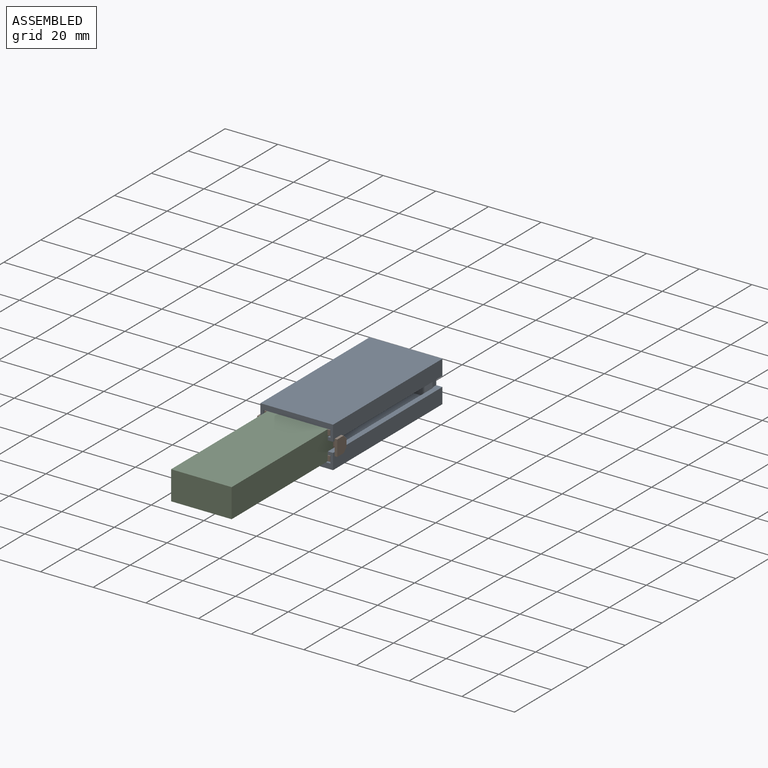
[diagram: assembled view]
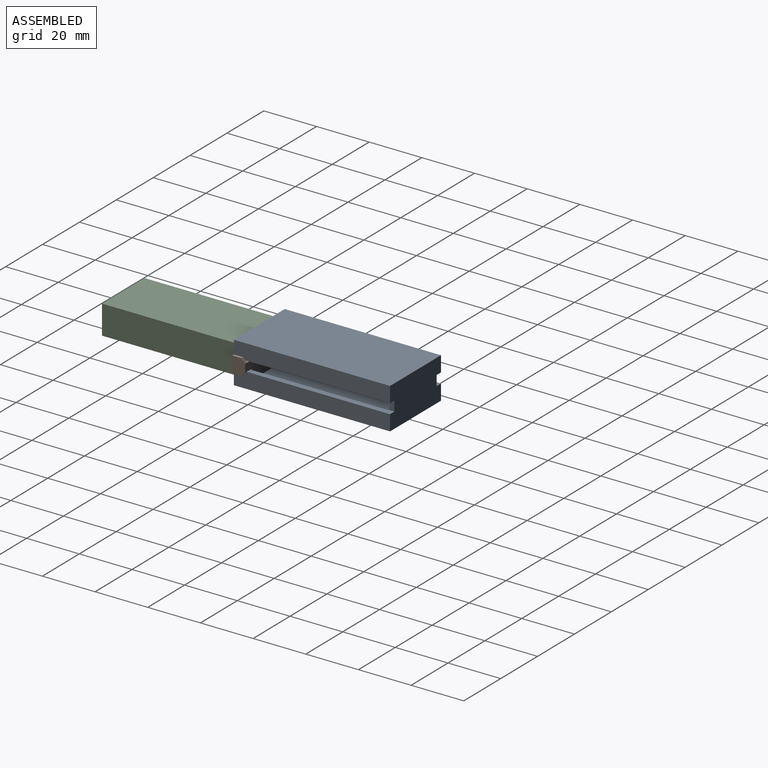
[diagram: assembled view, second angle]
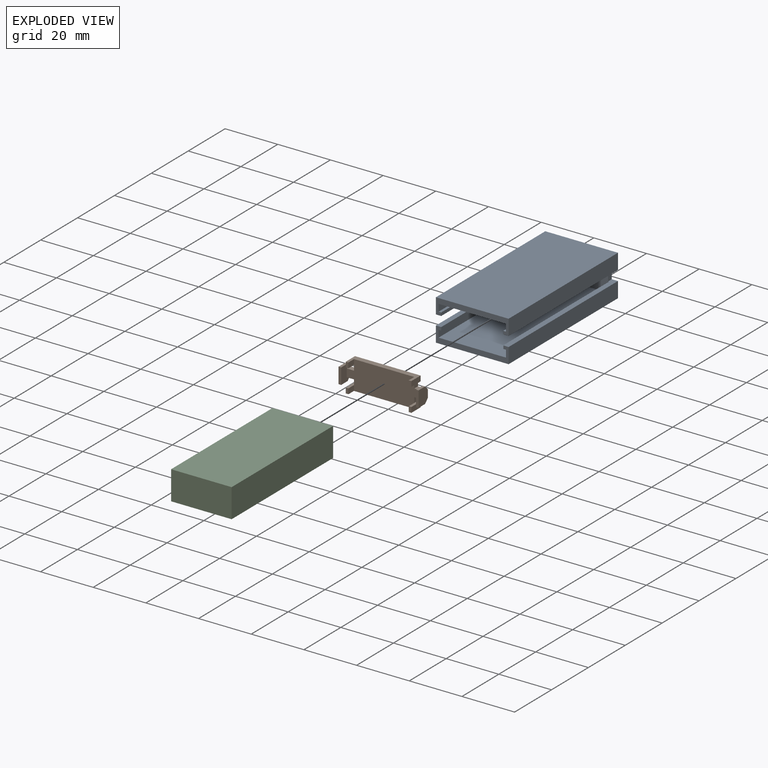
[diagram: exploded view]
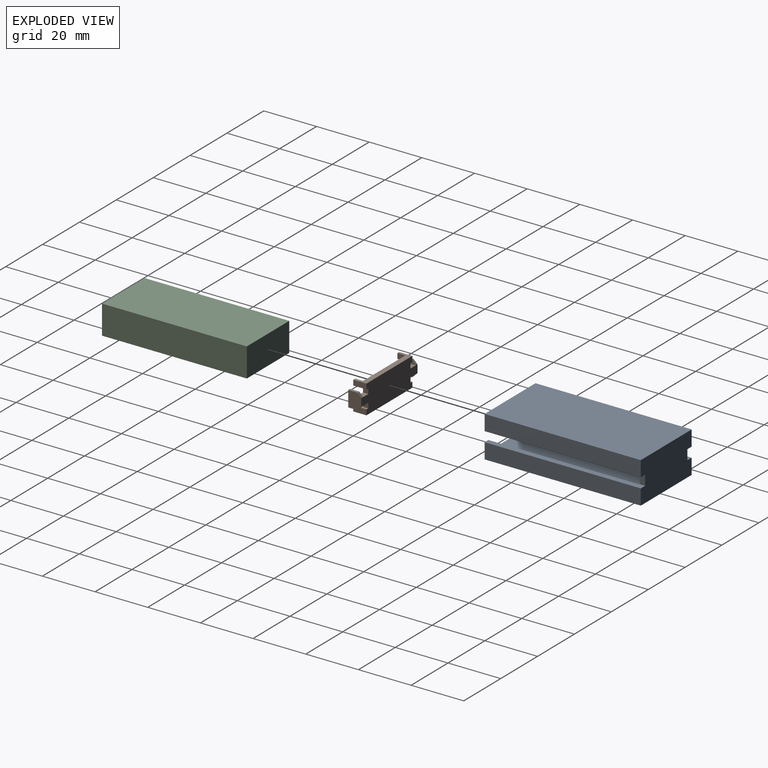
[diagram: exploded view, second angle]
ASSEMBLY  parts=3 mates=2
PART A: 30 faces, bbox 27.6x15.6x59.3 mm
  f0: plane 57.3x25.6mm, normal (0,-1,0), area 1466.9mm2, adj f2,f10,f22,f28
  f1: plane 57.3x1mm, normal (0,1,0), area 57.3mm2, adj f2,f10,f12,f28
  f2: plane 57.3x2.7mm, normal (1,0,0), area 154.7mm2, adj f0,f1,f10,f28
  f3: plane 57.3x25.6mm, normal (0,1,0), area 1466.9mm2, adj f10,f23,f27,f29
  f4: plane 57.3x1mm, normal (0,-1,0), area 57.3mm2, adj f10,f11,f27,f29
  f5: plane 57.3x1mm, normal (0,-1,0), area 57.3mm2, adj f10,f18,f23,f29
  f6: plane 57.3x1mm, normal (0,1,0), area 57.3mm2, adj f10,f13,f22,f28
  f7: plane 59.3x5.9mm, normal (-1,0,0), area 349.9mm2, adj f9,f15,f26,f28
  f8: plane 59.3x5.9mm, normal (1,0,0), area 349.9mm2, adj f9,f15,f20,f28
  f9: plane 27.6x15.6mm, normal (0,0,-1), area 412.7mm2, adj f7,f8,f14,f15,f16,f17,f19,f20
  f10: plane 25.6x11.6mm, normal (0,0,1), area 281.9mm2, adj f0,f1,f2,f3,f4,f5,f6,f11
  f11: plane 57.3x1.2mm, normal (1,0,0), area 68.8mm2, adj f4,f10,f25,f29
  f12: plane 57.3x1.2mm, normal (1,0,0), area 68.8mm2, adj f1,f10,f26,f28
  f13: plane 57.3x1.2mm, normal (-1,0,0), area 68.8mm2, adj f6,f10,f20,f28
  f14: plane 59.3x5.9mm, normal (-1,0,0), area 349.9mm2, adj f9,f17,f25,f29
  f15: plane 59.3x27.6mm, normal (0,1,0), area 1636.7mm2, adj f7,f8,f9,f28
  f16: plane 59.3x5.9mm, normal (1,0,0), area 349.9mm2, adj f9,f17,f21,f29
  f17: plane 59.3x27.6mm, normal (0,-1,0), area 1636.7mm2, adj f9,f14,f16,f29
  f18: plane 57.3x1.2mm, normal (-1,0,0), area 68.8mm2, adj f5,f10,f21,f29
  f19: plane 3.8x2mm, normal (1,0,0), area 7.6mm2, adj f9,f10,f20,f21
  f20: plane 59.3x2.35mm, normal (0,-1,0), area 119.3mm2, adj f8,f9,f10,f13,f19,f28
  f21: plane 59.3x2.35mm, normal (0,1,0), area 119.3mm2, adj f9,f10,f16,f18,f19,f29
  f22: plane 57.3x2.7mm, normal (-1,0,0), area 154.7mm2, adj f0,f6,f10,f28
  f23: plane 57.3x2.7mm, normal (-1,0,0), area 154.7mm2, adj f3,f5,f10,f29
  f24: plane 3.8x2mm, normal (-1,0,0), area 7.6mm2, adj f9,f10,f25,f26
  f25: plane 59.3x2.35mm, normal (0,1,0), area 119.3mm2, adj f9,f10,f11,f14,f24,f29
  f26: plane 59.3x2.35mm, normal (0,-1,0), area 119.3mm2, adj f7,f9,f10,f12,f24,f28
  f27: plane 57.3x2.7mm, normal (1,0,0), area 154.7mm2, adj f3,f4,f10,f29
  f28: plane 27.6x5.9mm, normal (0,0,1), area 65.4mm2, adj f0,f1,f2,f6,f7,f8,f12,f13
  f29: plane 27.6x5.9mm, normal (0,0,1), area 65.4mm2, adj f3,f4,f5,f11,f14,f16,f17,f18
PART B: 42 faces, bbox 30.4x10.9x5 mm
  f0: plane 2x1.95mm, normal (-1,0,0), area 3.9mm2, adj f8,f10,f11,f25
  f1: plane 2x1.95mm, normal (1,0,0), area 3.9mm2, adj f2,f10,f11,f12
  f2: plane 2.75x2mm, normal (0,1,0), area 5.5mm2, adj f1,f10,f11,f41
  f3: plane 2.75x2mm, normal (0,-1,0), area 5.5mm2, adj f4,f10,f11,f41
  f4: plane 2x1.95mm, normal (1,0,0), area 3.9mm2, adj f3,f10,f11,f17
  f5: plane 24.9x5mm, normal (0,-1,0), area 55.8mm2, adj f10,f11,f16,f18,f19,f20,f21,f23
  f6: plane 2x1.95mm, normal (-1,0,0), area 3.9mm2, adj f7,f10,f11,f22
  f7: plane 2.75x2mm, normal (0,-1,0), area 5.5mm2, adj f6,f10,f11,f34
  f8: plane 2.75x2mm, normal (0,1,0), area 5.5mm2, adj f0,f10,f11,f34
  f9: plane 24.9x5mm, normal (0,1,0), area 55.8mm2, adj f10,f11,f13,f14,f15,f24,f26,f27
  f10: plane 28.4x10.9mm, normal (0,0,-1), area 266.1mm2, adj f0,f1,f2,f3,f4,f5,f6,f7
  f11: plane 30.4x10.9mm, normal (0,0,1), area 280.1mm2, adj f0,f1,f2,f3,f4,f5,f6,f7
  f12: plane 5x1mm, normal (0,-1,0), area 5mm2, adj f1,f11,f13,f14,f15
  f13: plane 3x2mm, normal (-1,0,0), area 6mm2, adj f9,f10,f12,f15
  f14: plane 5x2mm, normal (1,0,0), area 10mm2, adj f9,f11,f12,f15
  f15: plane 2x1mm, normal (0,0,-1), area 2mm2, adj f9,f12,f13,f14
  f16: plane 3x2mm, normal (-1,0,0), area 6mm2, adj f5,f10,f17,f19
  f17: plane 5x1mm, normal (0,1,0), area 5mm2, adj f4,f11,f16,f18,f19
  f18: plane 5x2mm, normal (1,0,0), area 10mm2, adj f5,f11,f17,f19
  f19: plane 2x1mm, normal (0,0,-1), area 2mm2, adj f5,f16,f17,f18
  f20: plane 3x2mm, normal (1,0,0), area 6mm2, adj f5,f10,f22,f23
  f21: plane 5x2mm, normal (-1,0,0), area 10mm2, adj f5,f11,f22,f23
  f22: plane 5x1mm, normal (0,1,0), area 5mm2, adj f6,f11,f20,f21,f23
  f23: plane 2x1mm, normal (0,0,-1), area 2mm2, adj f5,f20,f21,f22
  f24: plane 3x2mm, normal (1,0,0), area 6mm2, adj f9,f10,f25,f27
  f25: plane 5x1mm, normal (0,-1,0), area 5mm2, adj f0,f11,f24,f26,f27
  f26: plane 5x2mm, normal (-1,0,0), area 10mm2, adj f9,f11,f25,f27
  f27: plane 2x1mm, normal (0,0,-1), area 2mm2, adj f9,f24,f25,f26
  f28: plane 1.5x1.5mm, normal (0,0.71,0.71), area 2.1mm2, adj f11,f29,f33,f34
  f29: plane 3.5x1mm, normal (0,1,0), area 3.5mm2, adj f28,f30,f33,f34
  f30: plane 6x1mm, normal (0,0,-1), area 6mm2, adj f29,f31,f33,f34
  f31: plane 3.5x1mm, normal (0,-1,0), area 3.5mm2, adj f30,f32,f33,f34
  f32: plane 1.5x1.5mm, normal (0,-0.71,0.71), area 2.1mm2, adj f11,f31,f33,f34
  f33: plane 6x5mm, normal (-1,0,0), area 27.7mm2, adj f11,f28,f29,f30,f31,f32
  f34: plane 6x5mm, normal (1,0,0), area 21.7mm2, adj f7,f8,f10,f28,f29,f30,f31,f32
  f35: plane 1.5x1.5mm, normal (0,0.71,0.71), area 2.1mm2, adj f11,f36,f40,f41
  f36: plane 3.5x1mm, normal (0,1,0), area 3.5mm2, adj f35,f37,f40,f41
  f37: plane 6x1mm, normal (0,0,-1), area 6mm2, adj f36,f38,f40,f41
  f38: plane 3.5x1mm, normal (0,-1,0), area 3.5mm2, adj f37,f39,f40,f41
  f39: plane 1.5x1.5mm, normal (0,-0.71,0.71), area 2.1mm2, adj f11,f38,f40,f41
  f40: plane 6x5mm, normal (1,0,0), area 27.7mm2, adj f11,f35,f36,f37,f38,f39
  f41: plane 6x5mm, normal (-1,0,0), area 21.7mm2, adj f2,f3,f10,f35,f36,f37,f38,f39
PART C: 6 faces, bbox 23x11x55 mm
  f0: plane 55x11mm, normal (1,0,0), area 605mm2, adj f1,f3,f4,f5
  f1: plane 23x11mm, normal (0,0,1), area 253mm2, adj f0,f2,f4,f5
  f2: plane 55x11mm, normal (-1,0,0), area 605mm2, adj f1,f3,f4,f5
  f3: plane 23x11mm, normal (0,0,-1), area 253mm2, adj f0,f2,f4,f5
  f4: plane 55x23mm, normal (0,-1,0), area 1265mm2, adj f0,f1,f2,f3
  f5: plane 55x23mm, normal (0,1,0), area 1265mm2, adj f0,f1,f2,f3
PLACE A rot(axis=(1,0,0),90deg) t=(0,-0.15,-7.8)mm
PLACE B rot(axis=(-1,0,0),90deg) t=(0,5.45,-7.8)mm
PLACE C rot(axis=(-1,0,0),90deg) t=(0,-53.85,-7.8)mm
MATE fastened C.f1 <-> B.f10  axis (0,1,0) through (0,-26.35,-7.8)mm
MATE slider B.f11 <-> A.f10  axis (0,1,0) through (0,-24.35,-7.8)mm
